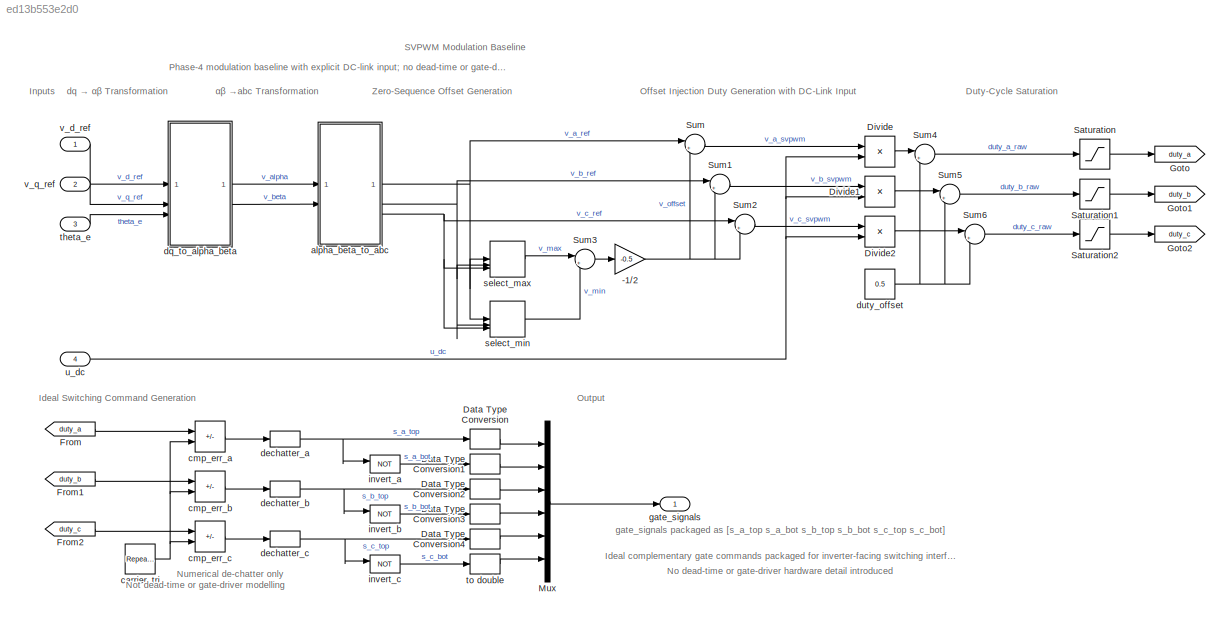
MODEL slx_ed13b553e2d0
KIND model
CONFIG AbsTol = auto
CONFIG EnableMultiTasking = off
CONFIG FixedStep = Ts_mod
CONFIG MaxStep = auto
CONFIG MinStep = auto
CONFIG RelTol = 1e-3
CONFIG SampleTimeConstraint = Unconstrained
CONFIG SolverName = FixedStepDiscrete
CONFIG StartTime = 0.0
CONFIG StopTime = 0.01
WORKSPACE source: MATLAB code (in-file)
WORKSPACE Ts_mod = 1e-6  (= 1e-06)
WORKSPACE fsw = 5000
BLOCK [Gain] -1//2
  Gain = -0.5
BLOCK [DataTypeConversion] Data Type Conversion
  OutDataTypeStr = double
  RndMeth = Floor
  SaturateOnIntegerOverflow = off
BLOCK [DataTypeConversion] Data Type Conversion1
  OutDataTypeStr = double
  RndMeth = Floor
  SaturateOnIntegerOverflow = off
BLOCK [DataTypeConversion] Data Type Conversion2
  OutDataTypeStr = double
  RndMeth = Floor
  SaturateOnIntegerOverflow = off
BLOCK [DataTypeConversion] Data Type Conversion3
  OutDataTypeStr = double
  RndMeth = Floor
  SaturateOnIntegerOverflow = off
BLOCK [DataTypeConversion] Data Type Conversion4
  OutDataTypeStr = double
  RndMeth = Floor
  SaturateOnIntegerOverflow = off
BLOCK [Product] Divide
  Inputs = */
BLOCK [Product] Divide1
  Inputs = */
BLOCK [Product] Divide2
  Inputs = */
BLOCK [From] From
  GotoTag = duty_a
BLOCK [From] From1
  GotoTag = duty_b
BLOCK [From] From2
  GotoTag = duty_c
BLOCK [Goto] Goto
  GotoTag = duty_a
BLOCK [Goto] Goto1
  GotoTag = duty_b
BLOCK [Goto] Goto2
  GotoTag = duty_c
BLOCK [Mux] Mux
  DisplayOption = bar
  Inputs = 6
BLOCK [Saturate] Saturation
  LowerLimit = 0
  UpperLimit = 1
BLOCK [Saturate] Saturation1
  LowerLimit = 0
  UpperLimit = 1
BLOCK [Saturate] Saturation2
  LowerLimit = 0
  UpperLimit = 1
BLOCK [Sum] Sum
  Inputs = |++
BLOCK [Sum] Sum1
  Inputs = |++
BLOCK [Sum] Sum2
  Inputs = |++
BLOCK [Sum] Sum3
  Inputs = |++
BLOCK [Sum] Sum4
  Inputs = |++
BLOCK [Sum] Sum5
  Inputs = |++
BLOCK [Sum] Sum6
  Inputs = |++
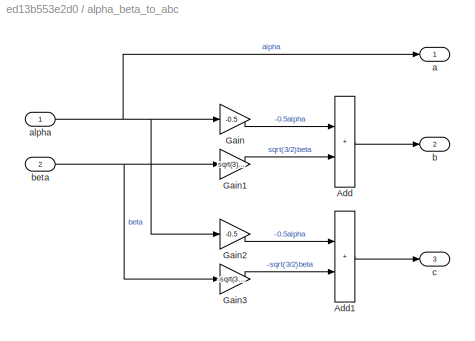
BLOCK [SubSystem] alpha_beta_to_abc
BLOCK [Sum] alpha_beta_to_abc/Add
  IconShape = rectangular
BLOCK [Sum] alpha_beta_to_abc/Add1
  IconShape = rectangular
BLOCK [Gain] alpha_beta_to_abc/Gain
  Gain = -0.5
BLOCK [Gain] alpha_beta_to_abc/Gain1
  Gain = sqrt(3)/2
BLOCK [Gain] alpha_beta_to_abc/Gain2
  Gain = -0.5
BLOCK [Gain] alpha_beta_to_abc/Gain3
  Gain = -sqrt(3)/2
BLOCK [Outport] alpha_beta_to_abc/a
BLOCK [Inport] alpha_beta_to_abc/alpha
BLOCK [Outport] alpha_beta_to_abc/b
  Port = 2
BLOCK [Inport] alpha_beta_to_abc/beta
  Port = 2
BLOCK [Outport] alpha_beta_to_abc/c
  Port = 3
BLOCK [Reference] carrier_tri  REF=simulink/Sources/Repeating
Sequence
  SourceBlock = simulink/Sources/Repeating\nSequence
  SourceType = Repeating table
BLOCK [Sum] cmp_err_a
  IconShape = rectangular
  Inputs = +-
BLOCK [Sum] cmp_err_b
  IconShape = rectangular
  Inputs = +-
BLOCK [Sum] cmp_err_c
  IconShape = rectangular
  Inputs = +-
BLOCK [Relay] dechatter_a
  OffSwitchValue = -1e-6
  OnSwitchValue = 1e-6
BLOCK [Relay] dechatter_b
  OffSwitchValue = -1e-6
  OnSwitchValue = 1e-6
BLOCK [Relay] dechatter_c
  OffSwitchValue = -1e-6
  OnSwitchValue = 1e-6
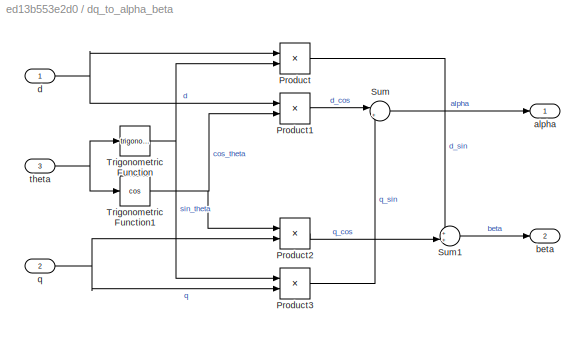
BLOCK [SubSystem] dq_to_alpha_beta
BLOCK [Product] dq_to_alpha_beta/Product
BLOCK [Product] dq_to_alpha_beta/Product1
BLOCK [Product] dq_to_alpha_beta/Product2
BLOCK [Product] dq_to_alpha_beta/Product3
BLOCK [Sum] dq_to_alpha_beta/Sum
  Inputs = |+-
BLOCK [Sum] dq_to_alpha_beta/Sum1
  Inputs = ++|
BLOCK [Trigonometry] dq_to_alpha_beta/Trigonometric Function
BLOCK [Trigonometry] dq_to_alpha_beta/Trigonometric Function1
  Operator = cos
BLOCK [Outport] dq_to_alpha_beta/alpha
BLOCK [Outport] dq_to_alpha_beta/beta
  Port = 2
BLOCK [Inport] dq_to_alpha_beta/d
BLOCK [Inport] dq_to_alpha_beta/q
  Port = 2
BLOCK [Inport] dq_to_alpha_beta/theta
  Port = 3
BLOCK [Constant] duty_offset
  Value = 0.5
BLOCK [Outport] gate_signals
BLOCK [Logic] invert_a
  AllPortsSameDT = off
  Operator = NOT
  OutDataTypeStr = boolean
BLOCK [Logic] invert_b
  AllPortsSameDT = off
  Operator = NOT
  OutDataTypeStr = boolean
BLOCK [Logic] invert_c
  AllPortsSameDT = off
  Operator = NOT
  OutDataTypeStr = boolean
BLOCK [MinMax] select_max
  Function = max
  Inputs = 3
BLOCK [MinMax] select_min
  Inputs = 3
BLOCK [Inport] theta_e
  Port = 3
BLOCK [DataTypeConversion] to double
  OutDataTypeStr = double
  RndMeth = Floor
  SaturateOnIntegerOverflow = off
BLOCK [Inport] u_dc
  Port = 4
BLOCK [Inport] v_d_ref
BLOCK [Inport] v_q_ref
  Port = 2
ANNOTATION (root): Phase-4 modulation baseline with explicit DC-link input; no dead-time or gate-driver hardware detail.
ANNOTATION (root): SVPWM Modulation Baseline
ANNOTATION (root): Duty Generation with DC-Link Input
ANNOTATION (root): Duty-Cycle Saturation
ANNOTATION (root): Ideal Switching Command Generation
ANNOTATION (root): Offset Injection
ANNOTATION (root): Output
ANNOTATION (root): Zero-Sequence Offset Generation
ANNOTATION (root): dq → αβ Transformation
ANNOTATION (root): αβ →abc Transformation
ANNOTATION (root): gate_signals packaged as [s_a_top s_a_bot s_b_top s_b_bot s_c_top s_c_bot]
ANNOTATION (root): Not dead-time or gate-driver modelling
ANNOTATION (root): Numerical de-chatter only
ANNOTATION (root): Ideal complementary gate commands packaged for inverter-facing switching interface
ANNOTATION (root): No dead-time or gate-driver hardware detail introduced
ANNOTATION (root): Inputs
NET -1//2:1 -> Sum1:2, Sum2:2, Sum:2
LINE Data Type Conversion1:1 -> Mux:2
LINE Data Type Conversion2:1 -> Mux:3
LINE Data Type Conversion3:1 -> Mux:4
LINE Data Type Conversion4:1 -> Mux:5
LINE Data Type Conversion:1 -> Mux:1
LINE Divide1:1 -> Sum5:1
LINE Divide2:1 -> Sum6:1
LINE Divide:1 -> Sum4:1
LINE From1:1 -> cmp_err_b:1
LINE From2:1 -> cmp_err_c:1
LINE From:1 -> cmp_err_a:1
LINE Mux:1 -> gate_signals:1
LINE Saturation1:1 -> Goto1:1
LINE Saturation2:1 -> Goto2:1
LINE Saturation:1 -> Goto:1
LINE Sum1:1 -> Divide1:1
LINE Sum2:1 -> Divide2:1
LINE Sum3:1 -> -1//2:1
LINE Sum4:1 -> Saturation:1
LINE Sum5:1 -> Saturation1:1
LINE Sum6:1 -> Saturation2:1
LINE Sum:1 -> Divide:1
LINE alpha_beta_to_abc/Add1:1 -> alpha_beta_to_abc/c:1
LINE alpha_beta_to_abc/Add:1 -> alpha_beta_to_abc/b:1
LINE alpha_beta_to_abc/Gain1:1 -> alpha_beta_to_abc/Add:2
LINE alpha_beta_to_abc/Gain2:1 -> alpha_beta_to_abc/Add1:1
LINE alpha_beta_to_abc/Gain3:1 -> alpha_beta_to_abc/Add1:2
LINE alpha_beta_to_abc/Gain:1 -> alpha_beta_to_abc/Add:1
NET alpha_beta_to_abc/alpha:1 -> alpha_beta_to_abc/Gain2:1, alpha_beta_to_abc/Gain:1, alpha_beta_to_abc/a:1
NET alpha_beta_to_abc/beta:1 -> alpha_beta_to_abc/Gain1:1, alpha_beta_to_abc/Gain3:1
NET alpha_beta_to_abc:1 -> Sum:1, select_max:1, select_min:1
NET alpha_beta_to_abc:2 -> Sum1:1, select_max:2, select_min:2
NET alpha_beta_to_abc:3 -> Sum2:1, select_max:3, select_min:3
NET carrier_tri:1 -> cmp_err_a:2, cmp_err_b:2, cmp_err_c:2
LINE cmp_err_a:1 -> dechatter_a:1
LINE cmp_err_b:1 -> dechatter_b:1
LINE cmp_err_c:1 -> dechatter_c:1
NET dechatter_a:1 -> Data Type Conversion:1, invert_a:1
NET dechatter_b:1 -> Data Type Conversion2:1, invert_b:1
NET dechatter_c:1 -> Data Type Conversion4:1, invert_c:1
LINE dq_to_alpha_beta/Product1:1 -> dq_to_alpha_beta/Sum:1
LINE dq_to_alpha_beta/Product2:1 -> dq_to_alpha_beta/Sum1:2
LINE dq_to_alpha_beta/Product3:1 -> dq_to_alpha_beta/Sum:2
LINE dq_to_alpha_beta/Product:1 -> dq_to_alpha_beta/Sum1:1
LINE dq_to_alpha_beta/Sum1:1 -> dq_to_alpha_beta/beta:1
LINE dq_to_alpha_beta/Sum:1 -> dq_to_alpha_beta/alpha:1
NET dq_to_alpha_beta/Trigonometric Function1:1 -> dq_to_alpha_beta/Product1:2, dq_to_alpha_beta/Product2:1
NET dq_to_alpha_beta/Trigonometric Function:1 -> dq_to_alpha_beta/Product3:1, dq_to_alpha_beta/Product:2
NET dq_to_alpha_beta/d:1 -> dq_to_alpha_beta/Product1:1, dq_to_alpha_beta/Product:1
NET dq_to_alpha_beta/q:1 -> dq_to_alpha_beta/Product2:2, dq_to_alpha_beta/Product3:2
NET dq_to_alpha_beta/theta:1 -> dq_to_alpha_beta/Trigonometric Function1:1, dq_to_alpha_beta/Trigonometric Function:1
LINE dq_to_alpha_beta:1 -> alpha_beta_to_abc:1
LINE dq_to_alpha_beta:2 -> alpha_beta_to_abc:2
NET duty_offset:1 -> Sum4:2, Sum5:2, Sum6:2
LINE invert_a:1 -> Data Type Conversion1:1
LINE invert_b:1 -> Data Type Conversion3:1
LINE invert_c:1 -> to double:1
LINE select_max:1 -> Sum3:1
LINE select_min:1 -> Sum3:2
LINE theta_e:1 -> dq_to_alpha_beta:3
LINE to double:1 -> Mux:6
NET u_dc:1 -> Divide1:2, Divide2:2, Divide:2
LINE v_d_ref:1 -> dq_to_alpha_beta:1
LINE v_q_ref:1 -> dq_to_alpha_beta:2
note: NET lines group one-source signal fan-out (src -> all destinations, sorted); 1:1 wires keep LINE
